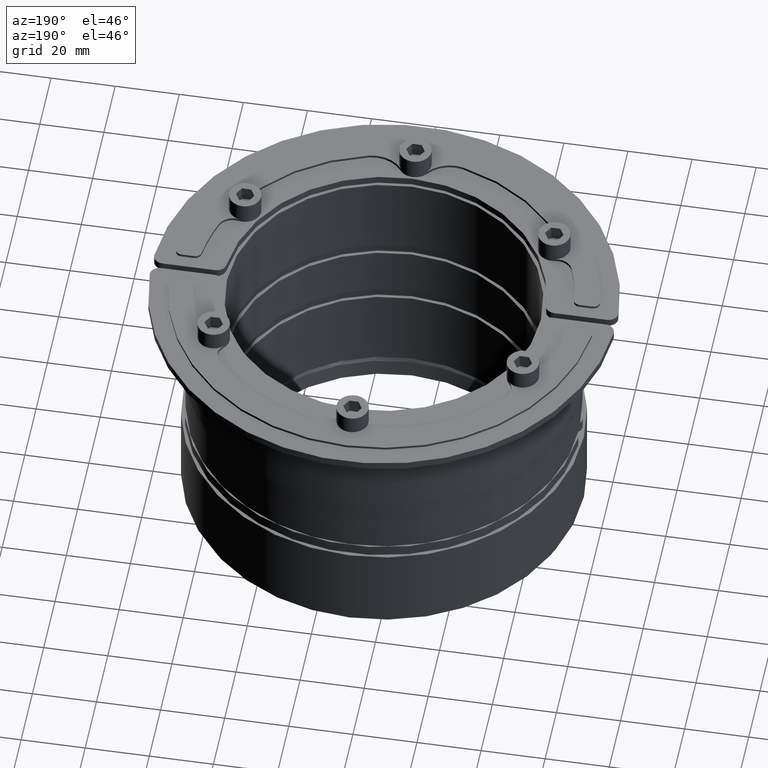
[diagram: clean part render]
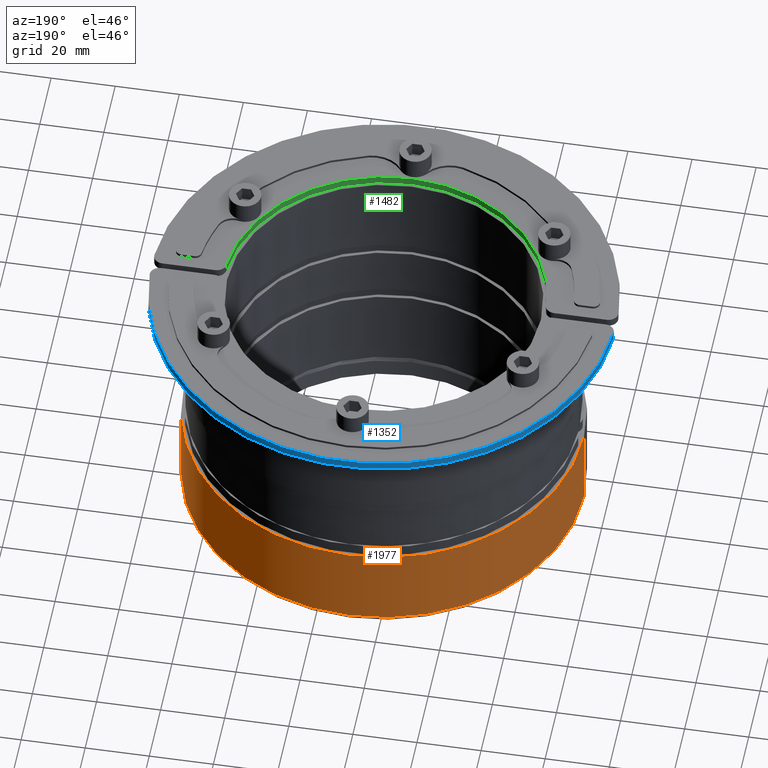
[diagram: same view with three faces highlighted in distinct colors, each labeled with its STEP entity id]
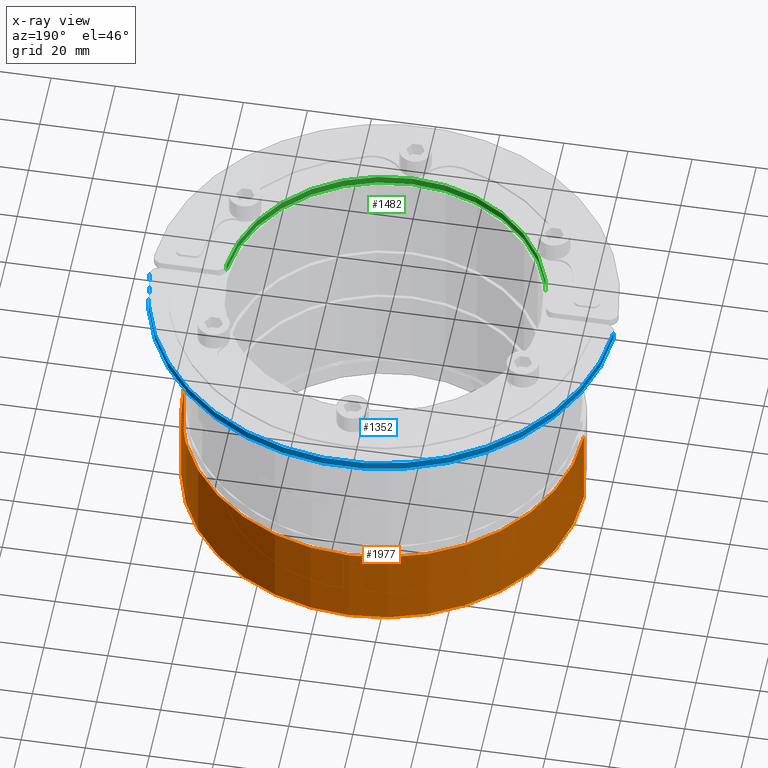
[diagram: x-ray of the same camera — body ghosted, the three highlighted faces saturated]
A machine part, auxiliary view with three faces highlighted in distinct colors.
The next image is the same camera in x-ray (body ghosted, the three faces saturated) — at least one of them is partly hidden behind the body in this view.
Their STEP definitions:

[orange] entity #1977 — the highlighted cylindrical surface (partial cylindrical patch) has radius 62.4 mm, axis along (-0, 0, 1).
#1919=CARTESIAN_POINT('',(-48.401428644322380,-25.449999999999989,11.500000000000000));
#1920=VERTEX_POINT('',#1919);
#1927=CARTESIAN_POINT('',(-48.401428644322380,-25.449999999999989,-15.0));
#1928=VERTEX_POINT('',#1927);
#1929=CARTESIAN_POINT('',(-48.401428644322380,-25.449999999999989,-15.0));
#1930=DIRECTION('',(0.0,0.0,1.0));
#1931=VECTOR('',#1930,26.500000000000000);
#1932=LINE('',#1929,#1931);
#1933=EDGE_CURVE('',#1928,#1920,#1932,.T.);
#1945=CARTESIAN_POINT('',(13.998571355677655,-25.449999999999960,-15.0));
#1946=DIRECTION('',(0.0,0.0,1.0));
#1947=DIRECTION('',(1.0,0.0,0.0));
#1948=AXIS2_PLACEMENT_3D('',#1945,#1946,#1947);
#1949=CYLINDRICAL_SURFACE('',#1948,62.399999999999999);
#1950=CARTESIAN_POINT('',(76.398571355677632,-25.449999999999989,11.500000000000000));
#1951=VERTEX_POINT('',#1950);
#1952=CARTESIAN_POINT('',(13.998571355677655,-25.449999999999960,11.500000000000000));
#1953=DIRECTION('',(0.0,0.0,-1.0));
#1954=DIRECTION('',(1.0,0.0,0.0));
#1955=AXIS2_PLACEMENT_3D('',#1952,#1953,#1954);
#1956=CIRCLE('',#1955,62.399999999999999);
#1957=EDGE_CURVE('',#1920,#1951,#1956,.T.);
#1958=ORIENTED_EDGE('',*,*,#1957,.T.);
#1959=CARTESIAN_POINT('',(76.398571355677632,-25.449999999999989,-15.0));
#1960=VERTEX_POINT('',#1959);
#1961=CARTESIAN_POINT('',(76.398571355677632,-25.449999999999989,-15.0));
#1962=DIRECTION('',(0.0,0.0,1.0));
#1963=VECTOR('',#1962,26.500000000000000);
#1964=LINE('',#1961,#1963);
#1965=EDGE_CURVE('',#1960,#1951,#1964,.T.);
#1966=ORIENTED_EDGE('',*,*,#1965,.F.);
#1967=CARTESIAN_POINT('',(13.998571355677655,-25.449999999999960,-15.0));
#1968=DIRECTION('',(0.0,0.0,1.0));
#1969=DIRECTION('',(1.0,0.0,0.0));
#1970=AXIS2_PLACEMENT_3D('',#1967,#1968,#1969);
#1971=CIRCLE('',#1970,62.399999999999999);
#1972=EDGE_CURVE('',#1960,#1928,#1971,.T.);
#1973=ORIENTED_EDGE('',*,*,#1972,.T.);
#1974=ORIENTED_EDGE('',*,*,#1933,.T.);
#1975=EDGE_LOOP('',(#1958,#1966,#1973,#1974));
#1976=FACE_OUTER_BOUND('',#1975,.T.);
#1977=ADVANCED_FACE('',(#1976),#1949,.T.);

[blue] entity #1352 — the highlighted cylindrical surface (partial cylindrical patch) has radius 72.5 mm, axis along (0, 0, 1).
#162=CARTESIAN_POINT('',(-92.646283983996057,-23.522666824407956,1.250000000000000));
#163=VERTEX_POINT('',#162);
#171=CARTESIAN_POINT('',(-92.646283983996057,-23.522666824407956,-1.250000000000000));
#172=VERTEX_POINT('',#171);
#173=CARTESIAN_POINT('',(-92.646283983996057,-23.522666824407956,-1.250000000000000));
#174=DIRECTION('',(0.0,0.0,1.0));
#175=VECTOR('',#174,2.500000000000000);
#176=LINE('',#173,#175);
#177=EDGE_CURVE('',#172,#163,#176,.T.);
#204=CARTESIAN_POINT('',(52.113363610413984,-23.522666824407956,-1.250000000000000));
#205=VERTEX_POINT('',#204);
#213=CARTESIAN_POINT('',(52.113363610413984,-23.522666824407956,1.250000000000000));
#214=VERTEX_POINT('',#213);
#215=CARTESIAN_POINT('',(52.113363610413984,-23.522666824407956,-1.250000000000000));
#216=DIRECTION('',(0.0,0.0,1.0));
#217=VECTOR('',#216,2.500000000000000);
#218=LINE('',#215,#217);
#219=EDGE_CURVE('',#205,#214,#218,.T.);
#1329=CARTESIAN_POINT('',(-20.266460186791051,-27.695328694911552,-1.250000000000000));
#1330=DIRECTION('',(0.0,0.0,1.0));
#1331=DIRECTION('',(1.0,0.0,0.0));
#1332=AXIS2_PLACEMENT_3D('',#1329,#1330,#1331);
#1333=CYLINDRICAL_SURFACE('',#1332,72.500000000000000);
#1334=CARTESIAN_POINT('',(-20.266460186791051,-27.695328694911552,1.250000000000000));
#1335=DIRECTION('',(0.0,0.0,-1.0));
#1336=DIRECTION('',(1.0,0.0,0.0));
#1337=AXIS2_PLACEMENT_3D('',#1334,#1335,#1336);
#1338=CIRCLE('',#1337,72.500000000000000);
#1339=EDGE_CURVE('',#163,#214,#1338,.T.);
#1340=ORIENTED_EDGE('',*,*,#1339,.T.);
#1341=ORIENTED_EDGE('',*,*,#219,.F.);
#1342=CARTESIAN_POINT('',(-20.266460186791051,-27.695328694911552,-1.250000000000000));
#1343=DIRECTION('',(0.0,0.0,1.0));
#1344=DIRECTION('',(1.0,0.0,0.0));
#1345=AXIS2_PLACEMENT_3D('',#1342,#1343,#1344);
#1346=CIRCLE('',#1345,72.500000000000000);
#1347=EDGE_CURVE('',#205,#172,#1346,.T.);
#1348=ORIENTED_EDGE('',*,*,#1347,.T.);
#1349=ORIENTED_EDGE('',*,*,#177,.T.);
#1350=EDGE_LOOP('',(#1340,#1341,#1348,#1349));
#1351=FACE_OUTER_BOUND('',#1350,.T.);
#1352=ADVANCED_FACE('',(#1351),#1333,.T.);

[green] entity #1482 — the highlighted cylindrical surface (partial cylindrical patch) has radius 50 mm, axis along (0, -0, 1).
#1422=CARTESIAN_POINT('',(29.590937027261077,-23.921743789251174,1.250000000000000));
#1423=VERTEX_POINT('',#1422);
#1431=CARTESIAN_POINT('',(29.590937027261077,-23.921743789251174,-1.250000000000000));
#1432=VERTEX_POINT('',#1431);
#1433=CARTESIAN_POINT('',(29.590937027261077,-23.921743789251174,-1.250000000000000));
#1434=DIRECTION('',(0.0,0.0,1.0));
#1435=VECTOR('',#1434,2.500000000000000);
#1436=LINE('',#1433,#1435);
#1437=EDGE_CURVE('',#1432,#1423,#1436,.T.);
#1450=CARTESIAN_POINT('',(-20.266460186791051,-27.695328694911552,-1.250000000000000));
#1451=DIRECTION('',(0.0,0.0,1.0));
#1452=DIRECTION('',(1.0,0.0,0.0));
#1453=AXIS2_PLACEMENT_3D('',#1450,#1451,#1452);
#1454=CYLINDRICAL_SURFACE('',#1453,50.0);
#1455=CARTESIAN_POINT('',(-70.123857400843178,-23.921743789251174,1.250000000000000));
#1456=VERTEX_POINT('',#1455);
#1457=CARTESIAN_POINT('',(-20.266460186791051,-27.695328694911552,1.250000000000000));
#1458=DIRECTION('',(0.0,0.0,1.0));
#1459=DIRECTION('',(1.0,0.0,0.0));
#1460=AXIS2_PLACEMENT_3D('',#1457,#1458,#1459);
#1461=CIRCLE('',#1460,50.0);
#1462=EDGE_CURVE('',#1423,#1456,#1461,.T.);
#1463=ORIENTED_EDGE('',*,*,#1462,.T.);
#1464=CARTESIAN_POINT('',(-70.123857400843178,-23.921743789251174,-1.250000000000000));
#1465=VERTEX_POINT('',#1464);
#1466=CARTESIAN_POINT('',(-70.123857400843178,-23.921743789251174,-1.250000000000000));
#1467=DIRECTION('',(0.0,0.0,1.0));
#1468=VECTOR('',#1467,2.500000000000000);
#1469=LINE('',#1466,#1468);
#1470=EDGE_CURVE('',#1465,#1456,#1469,.T.);
#1471=ORIENTED_EDGE('',*,*,#1470,.F.);
#1472=CARTESIAN_POINT('',(-20.266460186791051,-27.695328694911552,-1.250000000000000));
#1473=DIRECTION('',(0.0,0.0,-1.0));
#1474=DIRECTION('',(1.0,0.0,0.0));
#1475=AXIS2_PLACEMENT_3D('',#1472,#1473,#1474);
#1476=CIRCLE('',#1475,50.0);
#1477=EDGE_CURVE('',#1465,#1432,#1476,.T.);
#1478=ORIENTED_EDGE('',*,*,#1477,.T.);
#1479=ORIENTED_EDGE('',*,*,#1437,.T.);
#1480=EDGE_LOOP('',(#1463,#1471,#1478,#1479));
#1481=FACE_OUTER_BOUND('',#1480,.T.);
#1482=ADVANCED_FACE('',(#1481),#1454,.F.);